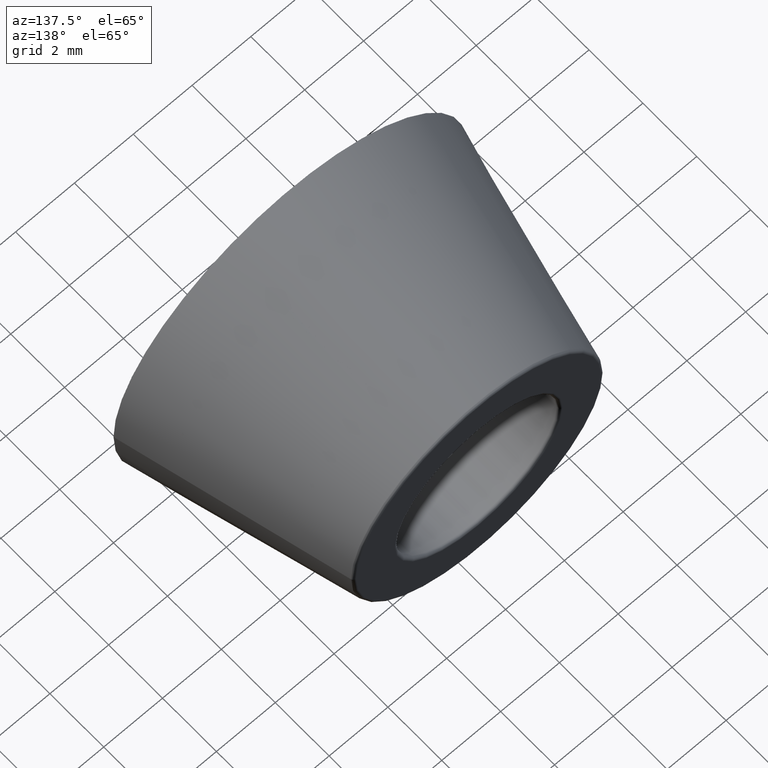
[diagram: clean part render]
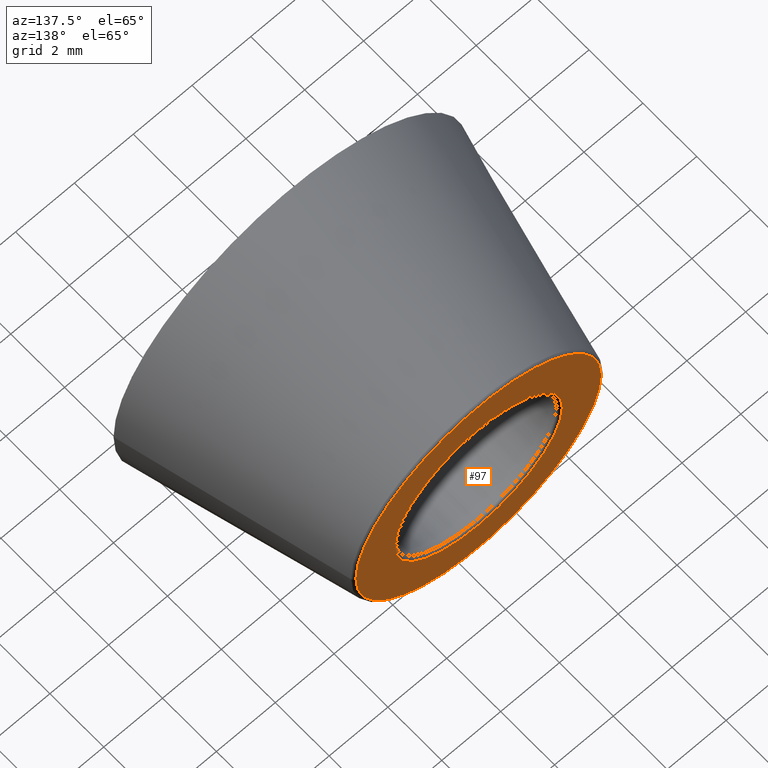
[diagram: same view with one face highlighted and labeled with its STEP entity id]
A machine part, auxiliary view. The second image highlights one B-rep face of the part: STEP entity #97.
In plain terms, the highlighted planar face has unit normal (0, 1, 0).
Its self-contained STEP definition (entity closure, byte-faithful):
#18=PLANE('',#110);
#23=FACE_BOUND('',#41,.T.);
#30=FACE_OUTER_BOUND('',#40,.T.);
#40=EDGE_LOOP('',(#80));
#41=EDGE_LOOP('',(#81));
#55=CIRCLE('',#109,2.85);
#56=CIRCLE('',#111,4.17192235935956);
#63=VERTEX_POINT('',#164);
#64=VERTEX_POINT('',#167);
#71=EDGE_CURVE('',#63,#63,#55,.T.);
#72=EDGE_CURVE('',#64,#64,#56,.T.);
#80=ORIENTED_EDGE('',*,*,#72,.F.);
#81=ORIENTED_EDGE('',*,*,#71,.F.);
#97=ADVANCED_FACE('',(#30,#23),#18,.T.);
#109=AXIS2_PLACEMENT_3D('',#165,#130,#131);
#110=AXIS2_PLACEMENT_3D('',#166,#132,#133);
#111=AXIS2_PLACEMENT_3D('',#168,#134,#135);
#130=DIRECTION('center_axis',(0.,1.,0.));
#131=DIRECTION('ref_axis',(-1.,0.,0.));
#132=DIRECTION('center_axis',(0.,1.,0.));
#133=DIRECTION('ref_axis',(0.,0.,1.));
#134=DIRECTION('center_axis',(0.,-1.,0.));
#135=DIRECTION('ref_axis',(-1.,0.,1.22464679914735E-16));
#164=CARTESIAN_POINT('',(2.85,7.,-3.49024337756996E-16));
#165=CARTESIAN_POINT('Origin',(0.,7.,0.));
#166=CARTESIAN_POINT('Origin',(4.25,7.,0.));
#167=CARTESIAN_POINT('',(4.17192235935956,7.,0.));
#168=CARTESIAN_POINT('Origin',(0.,7.,0.));